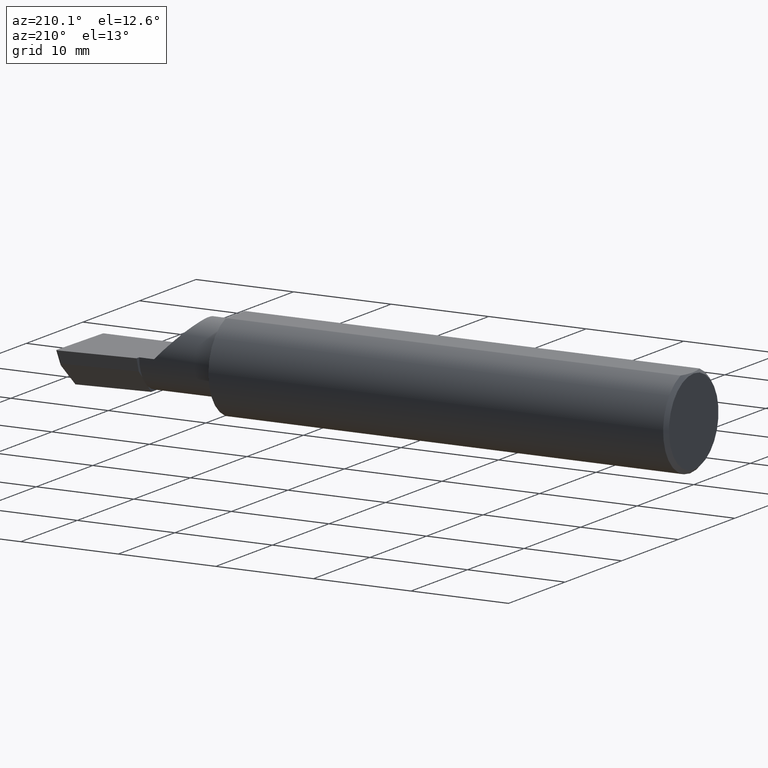
[diagram: clean part render]
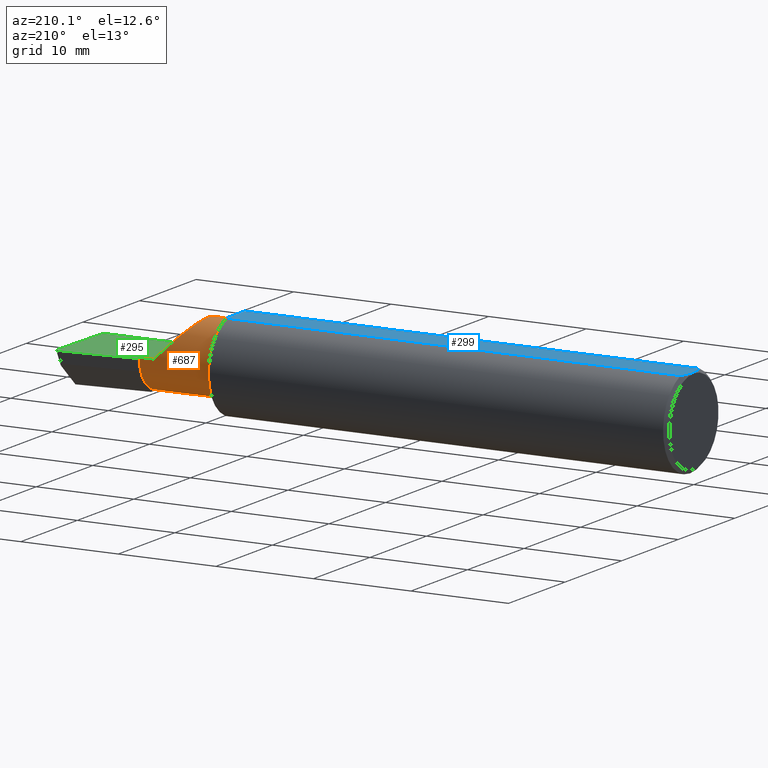
[diagram: same view with three faces highlighted in distinct colors, each labeled with its STEP entity id]
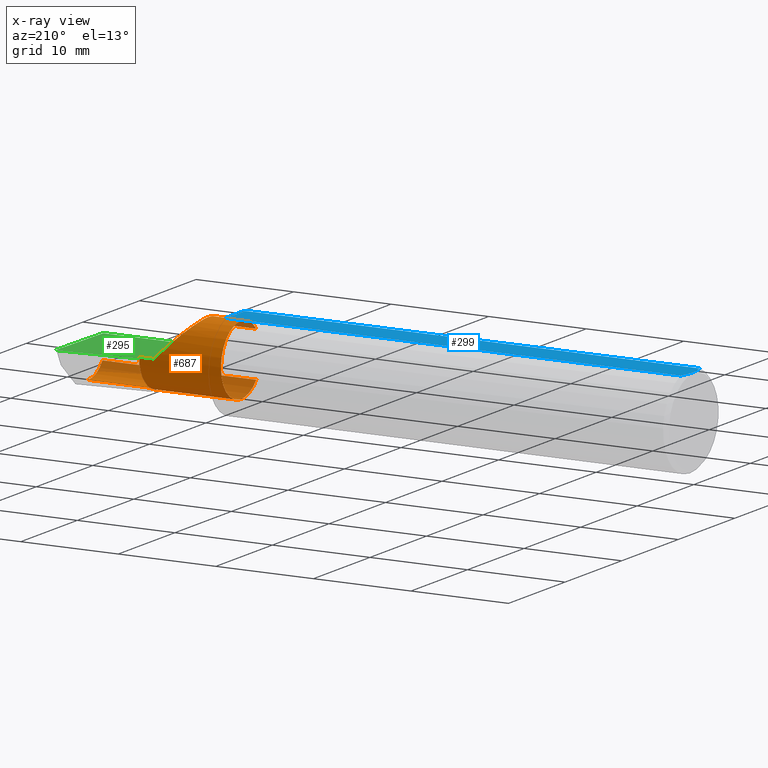
[diagram: x-ray of the same camera — body ghosted, the three highlighted faces saturated]
A machine part, auxiliary view with three faces highlighted in distinct colors.
The next image is the same camera in x-ray (body ghosted, the three faces saturated) — at least one of them is partly hidden behind the body in this view.
Their STEP definitions:

[orange] entity #687 — the highlighted cylindrical surface (partial cylindrical patch) has radius 3.5573 mm, axis along (-1, -0, -0).
#12 = DIRECTION ( 'NONE',  ( -1.000000000000000000, -6.829619984160658046E-18, -0.000000000000000000 ) ) ;
#15 = EDGE_LOOP ( 'NONE', ( #172, #425, #663, #174, #437, #22, #238, #591, #234, #598 ) ) ;
#22 = ORIENTED_EDGE ( 'NONE', *, *, #117, .T. ) ;
#32 = DIRECTION ( 'NONE',  ( -1.000000000000000000, -6.829619984160658046E-18, -0.000000000000000000 ) ) ;
#34 =( BOUNDED_CURVE ( )  B_SPLINE_CURVE ( 3, ( #563, #131, #349, #658 ),
 .UNSPECIFIED., .F., .T. ) 
 B_SPLINE_CURVE_WITH_KNOTS ( ( 4, 4 ),
 ( 5.422530673488458852, 7.853981633974482790 ),
 .UNSPECIFIED. ) 
 CURVE ( )  GEOMETRIC_REPRESENTATION_ITEM ( )  RATIONAL_B_SPLINE_CURVE ( ( 1.000000000000000000, 0.5651045289226863666, 0.5651045289226863666, 1.000000000000000000 ) ) 
 REPRESENTATION_ITEM ( '' )  );
#39 = DIRECTION ( 'NONE',  ( -1.000000000000000000, -6.829619984160658046E-18, -0.000000000000000000 ) ) ;
#40 = CARTESIAN_POINT ( 'NONE',  ( 2.024999999999999911, -0.1635956445993030084, -0.09130436773856176469 ) ) ;
#46 = EDGE_CURVE ( 'NONE', #506, #557, #34, .T. ) ;
#47 = CARTESIAN_POINT ( 'NONE',  ( 2.129999999999999893, 0.08264999999999990410, 1.065442715258197396E-16 ) ) ;
#62 = CARTESIAN_POINT ( 'NONE',  ( 0.000000000000000000, -0.05740000000000001351, 0.000000000000000000 ) ) ;
#74 = AXIS2_PLACEMENT_3D ( 'NONE', #564, #32, #508 ) ;
#81 = DIRECTION ( 'NONE',  ( 0.000000000000000000, -1.000000000000000000, 0.000000000000000000 ) ) ;
#96 = CIRCLE ( 'NONE', #389, 0.1400499999999999801 ) ;
#105 = LINE ( 'NONE', #192, #197 ) ;
#117 = EDGE_CURVE ( 'NONE', #557, #567, #305, .T. ) ;
#126 = VERTEX_POINT ( 'NONE', #417 ) ;
#128 = AXIS2_PLACEMENT_3D ( 'NONE', #350, #181, #81 ) ;
#131 = CARTESIAN_POINT ( 'NONE',  ( 1.921229036482944075, -0.06260079402492431389, 0.2087709635170538203 ) ) ;
#144 = CARTESIAN_POINT ( 'NONE',  ( 2.189999999999999947, 0.08265000000000004288, 3.267291166268305196E-16 ) ) ;
#164 = EDGE_CURVE ( 'NONE', #262, #294, #478, .T. ) ;
#171 = AXIS2_PLACEMENT_3D ( 'NONE', #62, #12, #427 ) ;
#172 = ORIENTED_EDGE ( 'NONE', *, *, #572, .F. ) ;
#173 = CARTESIAN_POINT ( 'NONE',  ( 1.860000000000000098, -0.1635956445993029251, -0.09130436773856194510 ) ) ;
#174 = ORIENTED_EDGE ( 'NONE', *, *, #247, .T. ) ;
#181 = DIRECTION ( 'NONE',  ( 1.000000000000000000, 6.829619984160658046E-18, 0.000000000000000000 ) ) ;
#191 = CARTESIAN_POINT ( 'NONE',  ( 1.860000000000000098, -0.1635956445993029529, 0.09130436773856188959 ) ) ;
#192 = CARTESIAN_POINT ( 'NONE',  ( 2.024999999999999911, -0.1635956445993030084, 0.09130436773856176469 ) ) ;
#195 = DIRECTION ( 'NONE',  ( -1.000000000000000000, -6.829619984160658046E-18, -0.000000000000000000 ) ) ;
#197 = VECTOR ( 'NONE', #470, 39.37007874015748143 ) ;
#213 = CYLINDRICAL_SURFACE ( 'NONE', #171, 0.1400500000000000078 ) ;
#224 = CARTESIAN_POINT ( 'NONE',  ( 2.189999999999999947, 0.06026672169836850418, -0.07595093880103591377 ) ) ;
#225 = VERTEX_POINT ( 'NONE', #316 ) ;
#234 = ORIENTED_EDGE ( 'NONE', *, *, #245, .T. ) ;
#238 = ORIENTED_EDGE ( 'NONE', *, *, #420, .T. ) ;
#245 = EDGE_CURVE ( 'NONE', #225, #340, #664, .T. ) ;
#247 = EDGE_CURVE ( 'NONE', #555, #506, #105, .T. ) ;
#252 = CARTESIAN_POINT ( 'NONE',  ( 2.481080296960508580, -0.1635956445993030084, -0.09130436773856176469 ) ) ;
#262 = VERTEX_POINT ( 'NONE', #535 ) ;
#271 = FACE_OUTER_BOUND ( 'NONE', #15, .T. ) ;
#281 = VERTEX_POINT ( 'NONE', #224 ) ;
#293 = VECTOR ( 'NONE', #523, 39.37007874015748143 ) ;
#294 = VERTEX_POINT ( 'NONE', #173 ) ;
#305 = LINE ( 'NONE', #580, #293 ) ;
#316 = CARTESIAN_POINT ( 'NONE',  ( 2.189999999999999947, 0.02208021110064902273, -0.1153121786430049006 ) ) ;
#331 = LINE ( 'NONE', #461, #646 ) ;
#340 = VERTEX_POINT ( 'NONE', #648 ) ;
#346 = DIRECTION ( 'NONE',  ( -1.000000000000000000, 5.691349986800549142E-18, -0.000000000000000000 ) ) ;
#349 = CARTESIAN_POINT ( 'NONE',  ( 1.975085956200449022, 0.08265000000000000124, 0.1549140437995494002 ) ) ;
#350 = CARTESIAN_POINT ( 'NONE',  ( 2.189999999999999947, -0.05739999999999999963, 0.000000000000000000 ) ) ;
#357 = DIRECTION ( 'NONE',  ( 0.000000000000000000, -1.000000000000000000, 0.000000000000000000 ) ) ;
#380 =( BOUNDED_CURVE ( )  B_SPLINE_CURVE ( 3, ( #252, #577, #684, #581 ),
 .UNSPECIFIED., .F., .T. ) 
 B_SPLINE_CURVE_WITH_KNOTS ( ( 4, 4 ),
 ( 5.632580117768155148, 6.493234751459282528 ),
 .UNSPECIFIED. ) 
 CURVE ( )  GEOMETRIC_REPRESENTATION_ITEM ( )  RATIONAL_B_SPLINE_CURVE ( ( 1.000000000000000000, 0.9392195014330944058, 0.9392195014330944058, 1.000000000000000000 ) ) 
 REPRESENTATION_ITEM ( '' )  );
#389 = AXIS2_PLACEMENT_3D ( 'NONE', #520, #39, #357 ) ;
#401 = EDGE_CURVE ( 'NONE', #126, #340, #331, .T. ) ;
#407 = CARTESIAN_POINT ( 'NONE',  ( 2.038695632261437130, -0.1635956445993029529, 0.09130436773856191734 ) ) ;
#412 = CIRCLE ( 'NONE', #74, 0.1400500000000000356 ) ;
#417 = CARTESIAN_POINT ( 'NONE',  ( 2.477873865042410806, -0.05739999999999999963, -0.1400500000000000633 ) ) ;
#419 = DIRECTION ( 'NONE',  ( -1.000000000000000000, -6.829619984160658046E-18, -0.000000000000000000 ) ) ;
#420 = EDGE_CURVE ( 'NONE', #567, #281, #412, .T. ) ;
#425 = ORIENTED_EDGE ( 'NONE', *, *, #164, .T. ) ;
#427 = DIRECTION ( 'NONE',  ( 6.829619984160658816E-18, -1.000000000000000000, 0.000000000000000000 ) ) ;
#433 = CIRCLE ( 'NONE', #128, 0.1400500000000000356 ) ;
#437 = ORIENTED_EDGE ( 'NONE', *, *, #46, .T. ) ;
#451 = AXIS2_PLACEMENT_3D ( 'NONE', #632, #195, #691 ) ;
#461 = CARTESIAN_POINT ( 'NONE',  ( 2.500000000000000000, -0.05739999999999999963, -0.1400500000000000633 ) ) ;
#470 = DIRECTION ( 'NONE',  ( 1.000000000000000000, 6.829619984160658046E-18, 0.000000000000000000 ) ) ;
#478 = LINE ( 'NONE', #40, #538 ) ;
#506 = VERTEX_POINT ( 'NONE', #407 ) ;
#508 = DIRECTION ( 'NONE',  ( 0.000000000000000000, -1.000000000000000000, 0.000000000000000000 ) ) ;
#518 = EDGE_CURVE ( 'NONE', #225, #281, #433, .T. ) ;
#520 = CARTESIAN_POINT ( 'NONE',  ( 1.860000000000000098, -0.05740000000000000657, 0.000000000000000000 ) ) ;
#523 = DIRECTION ( 'NONE',  ( 1.000000000000000000, 6.829619984160658046E-18, 0.000000000000000000 ) ) ;
#535 = CARTESIAN_POINT ( 'NONE',  ( 2.481080296960508580, -0.1635956445993030084, -0.09130436773856176469 ) ) ;
#538 = VECTOR ( 'NONE', #419, 39.37007874015748143 ) ;
#555 = VERTEX_POINT ( 'NONE', #191 ) ;
#557 = VERTEX_POINT ( 'NONE', #47 ) ;
#563 = CARTESIAN_POINT ( 'NONE',  ( 2.038695632261437130, -0.1635956445993029529, 0.09130436773856191734 ) ) ;
#564 = CARTESIAN_POINT ( 'NONE',  ( 2.189999999999999947, -0.05739999999999999963, 0.000000000000000000 ) ) ;
#567 = VERTEX_POINT ( 'NONE', #144 ) ;
#572 = EDGE_CURVE ( 'NONE', #262, #126, #380, .T. ) ;
#577 = CARTESIAN_POINT ( 'NONE',  ( 2.477925907309857401, -0.1365595166907235813, -0.1227499502647108609 ) ) ;
#580 = CARTESIAN_POINT ( 'NONE',  ( -9.564882787816664242E-19, 0.08264999999999998737, 3.267291166268304703E-16 ) ) ;
#581 = CARTESIAN_POINT ( 'NONE',  ( 2.477873865042410806, -0.05739999999999999963, -0.1400500000000000633 ) ) ;
#591 = ORIENTED_EDGE ( 'NONE', *, *, #518, .F. ) ;
#598 = ORIENTED_EDGE ( 'NONE', *, *, #401, .F. ) ;
#623 = EDGE_CURVE ( 'NONE', #555, #294, #96, .T. ) ;
#632 = CARTESIAN_POINT ( 'NONE',  ( 2.189999999999999947, -0.05739999999999999963, 0.000000000000000000 ) ) ;
#646 = VECTOR ( 'NONE', #346, 39.37007874015748143 ) ;
#648 = CARTESIAN_POINT ( 'NONE',  ( 2.189999999999999947, -0.05739999999999999963, -0.1400500000000000633 ) ) ;
#658 = CARTESIAN_POINT ( 'NONE',  ( 2.129999999999999893, 0.08264999999999990410, 1.065442715258197396E-16 ) ) ;
#663 = ORIENTED_EDGE ( 'NONE', *, *, #623, .F. ) ;
#664 = CIRCLE ( 'NONE', #451, 0.1400500000000000356 ) ;
#684 = CARTESIAN_POINT ( 'NONE',  ( 2.476787929832031221, -0.09887019258091186980, -0.1400500000000000356 ) ) ;
#687 = ADVANCED_FACE ( 'NONE', ( #271 ), #213, .T. ) ;
#691 = DIRECTION ( 'NONE',  ( 0.000000000000000000, -1.000000000000000000, 0.000000000000000000 ) ) ;

[blue] entity #299 — the highlighted planar face has unit normal (0, -0, -1).
#8 = ORIENTED_EDGE ( 'NONE', *, *, #573, .F. ) ;
#41 = VECTOR ( 'NONE', #410, 39.37007874015748143 ) ;
#49 = CARTESIAN_POINT ( 'NONE',  ( 0.004115035183746292881, 0.02255629470626744487, 0.1753499999999999781 ) ) ;
#51 = ORIENTED_EDGE ( 'NONE', *, *, #472, .F. ) ;
#52 = DIRECTION ( 'NONE',  ( 0.000000000000000000, -1.438723400918613551E-16, -1.000000000000000000 ) ) ;
#91 = CARTESIAN_POINT ( 'NONE',  ( 0.01499999999999997863, -0.06597272163553657975, 0.1753499999999999781 ) ) ;
#98 = CARTESIAN_POINT ( 'NONE',  ( 0.004093196532652216939, -0.02240707710020816909, 0.1753499999999999504 ) ) ;
#137 = CARTESIAN_POINT ( 'NONE',  ( 1.850000000000000311, 0.06597272163553663527, 0.1753499999999999781 ) ) ;
#156 = CARTESIAN_POINT ( 'NONE',  ( 1.850000000000000311, 0.2373500000000000332, 0.1753499999999999504 ) ) ;
#163 = EDGE_CURVE ( 'NONE', #319, #513, #473, .T. ) ;
#165 = CARTESIAN_POINT ( 'NONE',  ( 0.003000000000000218638, 2.334609556160449697E-17, 0.1753499999999999781 ) ) ;
#167 = FACE_OUTER_BOUND ( 'NONE', #187, .T. ) ;
#187 = EDGE_LOOP ( 'NONE', ( #490, #51, #301, #8, #386 ) ) ;
#206 = DIRECTION ( 'NONE',  ( 6.829619984160658046E-18, -1.000000000000000000, 1.438723400918613551E-16 ) ) ;
#209 = CARTESIAN_POINT ( 'NONE',  ( 0.003000000000000169632, 0.01127363201155560934, 0.1753499999999999781 ) ) ;
#236 = AXIS2_PLACEMENT_3D ( 'NONE', #496, #52, #328 ) ;
#264 = B_SPLINE_CURVE_WITH_KNOTS ( 'NONE', 3,
 ( #165, #209, #49, #385, #333, #482 ),
 .UNSPECIFIED., .F., .F.,
 ( 4, 2, 4 ),
 ( 0.003480013901590607410, 0.004330767971208083697, 0.005181522040825559984 ),
 .UNSPECIFIED. ) ;
#275 = LINE ( 'NONE', #156, #481 ) ;
#299 = ADVANCED_FACE ( 'NONE', ( #167 ), #607, .F. ) ;
#301 = ORIENTED_EDGE ( 'NONE', *, *, #649, .F. ) ;
#306 = CARTESIAN_POINT ( 'NONE',  ( 0.008227791779583789808, -0.04447712204611815878, 0.1753499999999999781 ) ) ;
#312 = DIRECTION ( 'NONE',  ( -1.000000000000000000, -0.000000000000000000, -0.000000000000000000 ) ) ;
#314 = CARTESIAN_POINT ( 'NONE',  ( 0.003000000000000218638, 2.334609556160449697E-17, 0.1753499999999999781 ) ) ;
#319 = VERTEX_POINT ( 'NONE', #484 ) ;
#328 = DIRECTION ( 'NONE',  ( 0.000000000000000000, 1.000000000000000000, -1.438723400918613551E-16 ) ) ;
#333 = CARTESIAN_POINT ( 'NONE',  ( 0.01125230581755086272, 0.05532998191409922023, 0.1753500000000000059 ) ) ;
#339 = LINE ( 'NONE', #568, #41 ) ;
#365 = CARTESIAN_POINT ( 'NONE',  ( 0.003000000000000172667, -0.01126410975715121283, 0.1753500000000000059 ) ) ;
#381 = VECTOR ( 'NONE', #312, 39.37007874015748143 ) ;
#385 = CARTESIAN_POINT ( 'NONE',  ( 0.008244775919947424855, 0.04453482769755855164, 0.1753499999999999504 ) ) ;
#386 = ORIENTED_EDGE ( 'NONE', *, *, #163, .F. ) ;
#410 = DIRECTION ( 'NONE',  ( 1.000000000000000000, 0.000000000000000000, 0.000000000000000000 ) ) ;
#424 = CARTESIAN_POINT ( 'NONE',  ( 0.003000000000000218638, 2.334609556160449697E-17, 0.1753499999999999781 ) ) ;
#454 = CARTESIAN_POINT ( 'NONE',  ( 0.01499999999999997863, -0.06597272163553657975, 0.1753499999999999781 ) ) ;
#472 = EDGE_CURVE ( 'NONE', #483, #619, #339, .T. ) ;
#473 = LINE ( 'NONE', #578, #381 ) ;
#481 = VECTOR ( 'NONE', #206, 39.37007874015748143 ) ;
#482 = CARTESIAN_POINT ( 'NONE',  ( 0.01499999999999999424, 0.06597272163553663527, 0.1753499999999999781 ) ) ;
#483 = VERTEX_POINT ( 'NONE', #556 ) ;
#484 = CARTESIAN_POINT ( 'NONE',  ( 1.850000000000000311, -0.06597272163553659363, 0.1753499999999999781 ) ) ;
#490 = ORIENTED_EDGE ( 'NONE', *, *, #690, .F. ) ;
#496 = CARTESIAN_POINT ( 'NONE',  ( 2.500000000000000000, 0.2373500000000000332, 0.1753499999999999504 ) ) ;
#513 = VERTEX_POINT ( 'NONE', #454 ) ;
#524 = CARTESIAN_POINT ( 'NONE',  ( 0.01128414053810044941, -0.05542038647445821781, 0.1753499999999999781 ) ) ;
#556 = CARTESIAN_POINT ( 'NONE',  ( 0.01499999999999999424, 0.06597272163553663527, 0.1753499999999999781 ) ) ;
#568 = CARTESIAN_POINT ( 'NONE',  ( 0.000000000000000000, 0.06597272163553663527, 0.1753499999999999781 ) ) ;
#573 = EDGE_CURVE ( 'NONE', #513, #606, #662, .T. ) ;
#578 = CARTESIAN_POINT ( 'NONE',  ( 0.000000000000000000, -0.06597272163553657975, 0.1753499999999999781 ) ) ;
#606 = VERTEX_POINT ( 'NONE', #424 ) ;
#607 = PLANE ( 'NONE',  #236 ) ;
#619 = VERTEX_POINT ( 'NONE', #137 ) ;
#649 = EDGE_CURVE ( 'NONE', #606, #483, #264, .T. ) ;
#662 = B_SPLINE_CURVE_WITH_KNOTS ( 'NONE', 3,
 ( #91, #524, #306, #98, #365, #314 ),
 .UNSPECIFIED., .F., .F.,
 ( 4, 2, 4 ),
 ( 0.001779942938356815062, 0.002629978419973711019, 0.003480013901590607410 ),
 .UNSPECIFIED. ) ;
#690 = EDGE_CURVE ( 'NONE', #619, #319, #275, .T. ) ;

[green] entity #295 — the highlighted planar face has unit normal (-0, 0, -1).
#2 = CARTESIAN_POINT ( 'NONE',  ( 2.499806390372749210, 0.1232563466314183787, 6.833120963331979760E-17 ) ) ;
#9 = CARTESIAN_POINT ( 'NONE',  ( 2.491672876940991710, -0.1873499999999999888, 6.915950918908297591E-17 ) ) ;
#13 = ORIENTED_EDGE ( 'NONE', *, *, #399, .T. ) ;
#18 = CARTESIAN_POINT ( 'NONE',  ( 2.493512870449283714, 0.1299961668063693288, 6.829619984160658046E-17 ) ) ;
#26 = EDGE_CURVE ( 'NONE', #184, #557, #296, .T. ) ;
#47 = CARTESIAN_POINT ( 'NONE',  ( 2.129999999999999893, 0.08264999999999990410, 1.065442715258197396E-16 ) ) ;
#70 = VERTEX_POINT ( 'NONE', #345 ) ;
#94 = LINE ( 'NONE', #421, #672 ) ;
#117 = EDGE_CURVE ( 'NONE', #557, #567, #305, .T. ) ;
#121 = DIRECTION ( 'NONE',  ( -1.000000000000000000, 0.000000000000000000, 1.033731667140896077E-16 ) ) ;
#122 = DIRECTION ( 'NONE',  ( -0.000000000000000000, 1.000000000000000000, -0.000000000000000000 ) ) ;
#142 = CARTESIAN_POINT ( 'NONE',  ( 2.499910038027473025, 0.1272144908750952319, 6.760805322059822821E-17 ) ) ;
#144 = CARTESIAN_POINT ( 'NONE',  ( 2.189999999999999947, 0.08265000000000004288, 3.267291166268305196E-16 ) ) ;
#148 = CARTESIAN_POINT ( 'NONE',  ( 2.490039159128059953, -0.2497391662021650194, 6.932588350567417155E-17 ) ) ;
#153 = ORIENTED_EDGE ( 'NONE', *, *, #593, .T. ) ;
#158 = LINE ( 'NONE', #278, #408 ) ;
#159 = LINE ( 'NONE', #322, #630 ) ;
#180 = ORIENTED_EDGE ( 'NONE', *, *, #543, .F. ) ;
#184 = VERTEX_POINT ( 'NONE', #637 ) ;
#196 = EDGE_CURVE ( 'NONE', #644, #434, #248, .T. ) ;
#205 = CARTESIAN_POINT ( 'NONE',  ( 2.499806390372749210, 0.1232563466314183787, 6.833120963331979760E-17 ) ) ;
#208 = CARTESIAN_POINT ( 'NONE',  ( 2.500000000000000000, -0.2500000000000000555, 6.829619984160658046E-17 ) ) ;
#221 = ORIENTED_EDGE ( 'NONE', *, *, #196, .T. ) ;
#239 = CARTESIAN_POINT ( 'NONE',  ( 2.492906680581862044, 0.1299669910246663562, 6.902945873237403297E-17 ) ) ;
#248 =( BOUNDED_CURVE ( )  B_SPLINE_CURVE ( 3, ( #205, #142, #686, #413 ),
 .UNSPECIFIED., .F., .T. ) 
 B_SPLINE_CURVE_WITH_KNOTS ( ( 4, 4 ),
 ( 1.953092279228235029, 3.511516179717477648 ),
 .UNSPECIFIED. ) 
 CURVE ( )  GEOMETRIC_REPRESENTATION_ITEM ( )  RATIONAL_B_SPLINE_CURVE ( ( 1.000000000000000000, 0.8076450242550446967, 0.8076450242550446967, 1.000000000000000000 ) ) 
 REPRESENTATION_ITEM ( '' )  );
#267 = EDGE_CURVE ( 'NONE', #277, #184, #158, .T. ) ;
#277 = VERTEX_POINT ( 'NONE', #9 ) ;
#278 = CARTESIAN_POINT ( 'NONE',  ( 3.377502344341257155E-32, -0.1873499999999999610, 3.267291166268304703E-16 ) ) ;
#293 = VECTOR ( 'NONE', #523, 39.37007874015748143 ) ;
#295 = ADVANCED_FACE ( 'NONE', ( #599 ), #335, .F. ) ;
#296 = LINE ( 'NONE', #613, #351 ) ;
#305 = LINE ( 'NONE', #580, #293 ) ;
#309 =( BOUNDED_CURVE ( )  B_SPLINE_CURVE ( 3, ( #438, #655, #517, #515 ),
 .UNSPECIFIED., .F., .T. ) 
 B_SPLINE_CURVE_WITH_KNOTS ( ( 4, 4 ),
 ( 3.511516179717477648, 3.604018710826077942 ),
 .UNSPECIFIED. ) 
 CURVE ( )  GEOMETRIC_REPRESENTATION_ITEM ( )  RATIONAL_B_SPLINE_CURVE ( ( 1.000000000000000000, 0.9992870672494007511, 0.9992870672494007511, 1.000000000000000000 ) ) 
 REPRESENTATION_ITEM ( '' )  );
#322 = CARTESIAN_POINT ( 'NONE',  ( 0.5470260790800310913, -0.05740000000000000657, 2.701812985571357332E-16 ) ) ;
#335 = PLANE ( 'NONE',  #416 ) ;
#336 = ORIENTED_EDGE ( 'NONE', *, *, #267, .F. ) ;
#345 = CARTESIAN_POINT ( 'NONE',  ( 2.189999999999999947, 0.1008003950587674780, 3.350782304728822623E-16 ) ) ;
#351 = VECTOR ( 'NONE', #122, 39.37007874015748143 ) ;
#399 = EDGE_CURVE ( 'NONE', #434, #455, #309, .T. ) ;
#408 = VECTOR ( 'NONE', #429, 39.37007874015748143 ) ;
#413 = CARTESIAN_POINT ( 'NONE',  ( 2.493512870449283714, 0.1299961668063693288, 6.829619984160658046E-17 ) ) ;
#416 = AXIS2_PLACEMENT_3D ( 'NONE', #208, #551, #121 ) ;
#421 = CARTESIAN_POINT ( 'NONE',  ( 2.189999999999999947, -0.2500000000000000555, 1.003418815229743595E-16 ) ) ;
#429 = DIRECTION ( 'NONE',  ( -1.000000000000000000, -0.000000000000000000, -0.000000000000000000 ) ) ;
#434 = VERTEX_POINT ( 'NONE', #18 ) ;
#438 = CARTESIAN_POINT ( 'NONE',  ( 2.493512870449283714, 0.1299961668063693288, 6.829619984160658046E-17 ) ) ;
#450 = ORIENTED_EDGE ( 'NONE', *, *, #26, .F. ) ;
#453 = ORIENTED_EDGE ( 'NONE', *, *, #117, .F. ) ;
#455 = VERTEX_POINT ( 'NONE', #239 ) ;
#514 = EDGE_LOOP ( 'NONE', ( #153, #221, #13, #642, #180, #453, #450, #336 ) ) ;
#515 = CARTESIAN_POINT ( 'NONE',  ( 2.492906680581862044, 0.1299669910246663562, 6.902945873237403297E-17 ) ) ;
#517 = CARTESIAN_POINT ( 'NONE',  ( 2.493108609909192364, 0.1299864346073983379, 6.831113838336319943E-17 ) ) ;
#523 = DIRECTION ( 'NONE',  ( 1.000000000000000000, 6.829619984160658046E-18, 0.000000000000000000 ) ) ;
#539 = DIRECTION ( 'NONE',  ( 0.9953961983671787417, 0.09584575252022456415, -1.028972571603813720E-16 ) ) ;
#543 = EDGE_CURVE ( 'NONE', #567, #70, #94, .T. ) ;
#551 = DIRECTION ( 'NONE',  ( -1.033731667140896077E-16, 0.000000000000000000, -1.000000000000000000 ) ) ;
#557 = VERTEX_POINT ( 'NONE', #47 ) ;
#567 = VERTEX_POINT ( 'NONE', #144 ) ;
#574 = VECTOR ( 'NONE', #583, 39.37007874015748854 ) ;
#580 = CARTESIAN_POINT ( 'NONE',  ( -9.564882787816664242E-19, 0.08264999999999998737, 3.267291166268304703E-16 ) ) ;
#583 = DIRECTION ( 'NONE',  ( 0.02617694830779364323, 0.9996573249755593693, -2.665804247635780349E-18 ) ) ;
#593 = EDGE_CURVE ( 'NONE', #277, #644, #688, .T. ) ;
#599 = FACE_OUTER_BOUND ( 'NONE', #514, .T. ) ;
#613 = CARTESIAN_POINT ( 'NONE',  ( 2.129999999999999893, -0.2500000000000000555, 1.065442715258197396E-16 ) ) ;
#630 = VECTOR ( 'NONE', #539, 39.37007874015748143 ) ;
#631 = DIRECTION ( 'NONE',  ( -6.829619984160658816E-18, 1.000000000000000000, 7.059994452165177242E-34 ) ) ;
#637 = CARTESIAN_POINT ( 'NONE',  ( 2.129999999999999893, -0.1873499999999999888, 1.065442715258197396E-16 ) ) ;
#642 = ORIENTED_EDGE ( 'NONE', *, *, #671, .F. ) ;
#644 = VERTEX_POINT ( 'NONE', #2 ) ;
#655 = CARTESIAN_POINT ( 'NONE',  ( 2.493310817358645792, 0.1299961668063693288, 6.829023555897999992E-17 ) ) ;
#671 = EDGE_CURVE ( 'NONE', #70, #455, #159, .T. ) ;
#672 = VECTOR ( 'NONE', #631, 39.37007874015748143 ) ;
#686 = CARTESIAN_POINT ( 'NONE',  ( 2.497312560284794092, 0.1299961668063694675, 6.787656272032840287E-17 ) ) ;
#688 = LINE ( 'NONE', #148, #574 ) ;